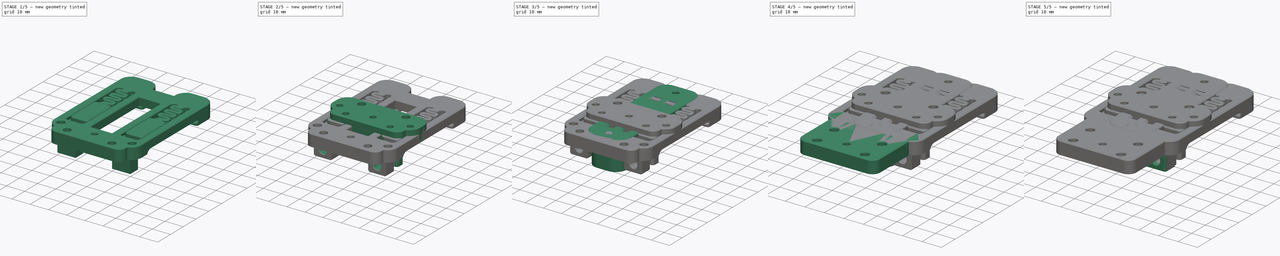
[diagram: build sequence overview — one tinted view per stage of 5, left to right]
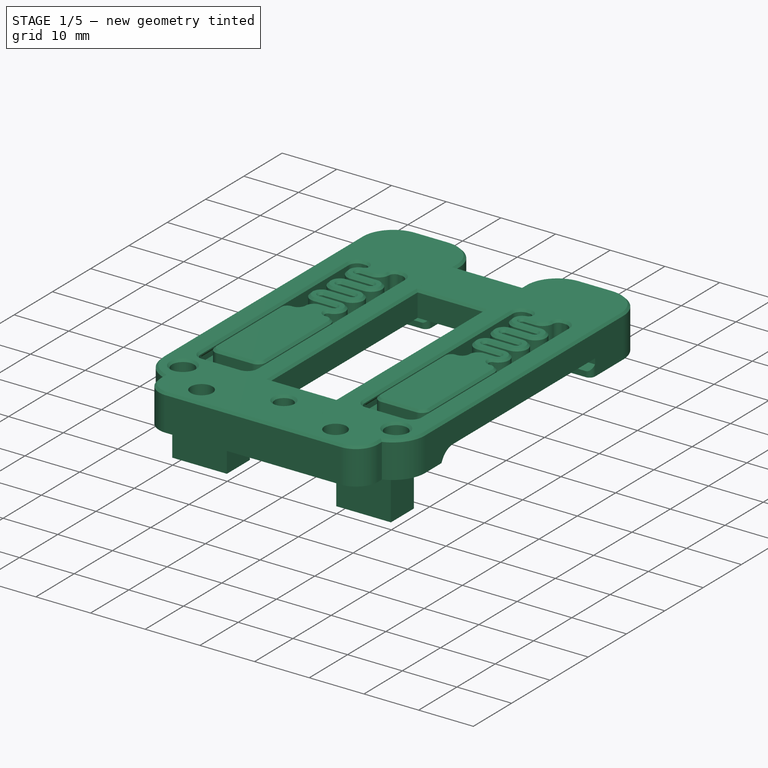
[diagram: stage 1 of 5 — iso view after this stage's code; geometry added in this stage tinted green]
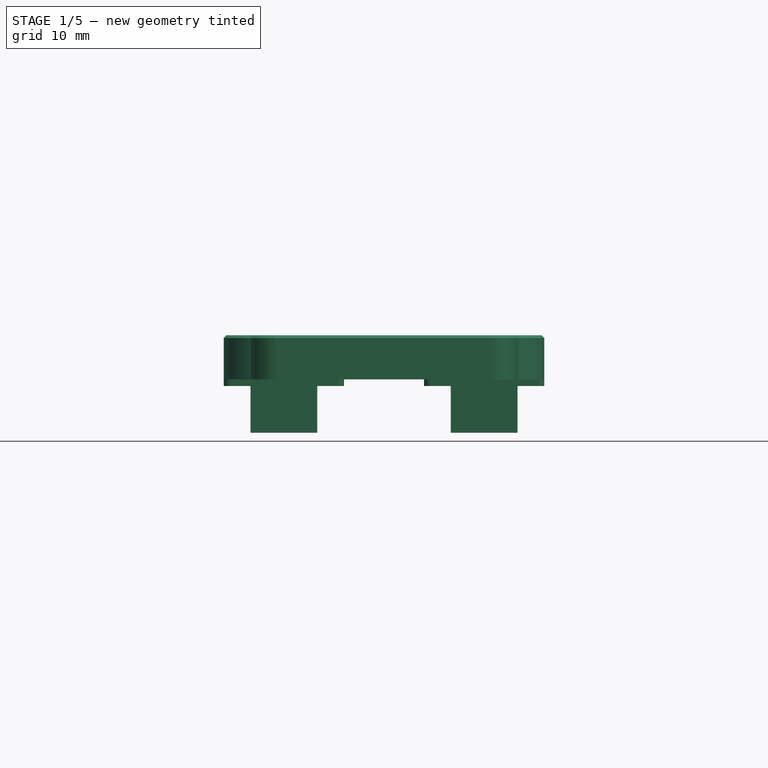
[diagram: stage 1 of 5 — front view after this stage's code; geometry added in this stage tinted green]
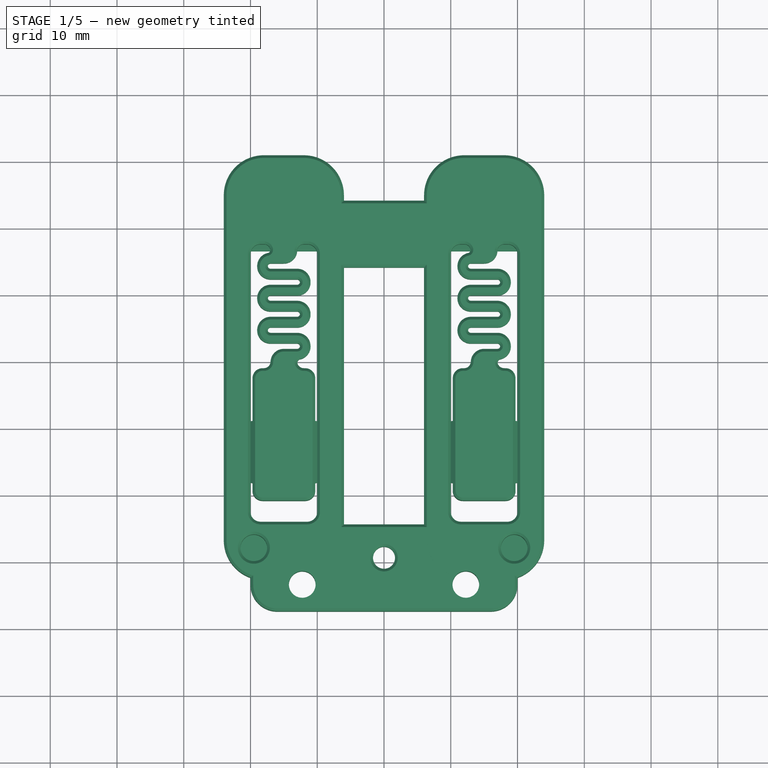
[diagram: stage 1 of 5 — top view after this stage's code; geometry added in this stage tinted green]
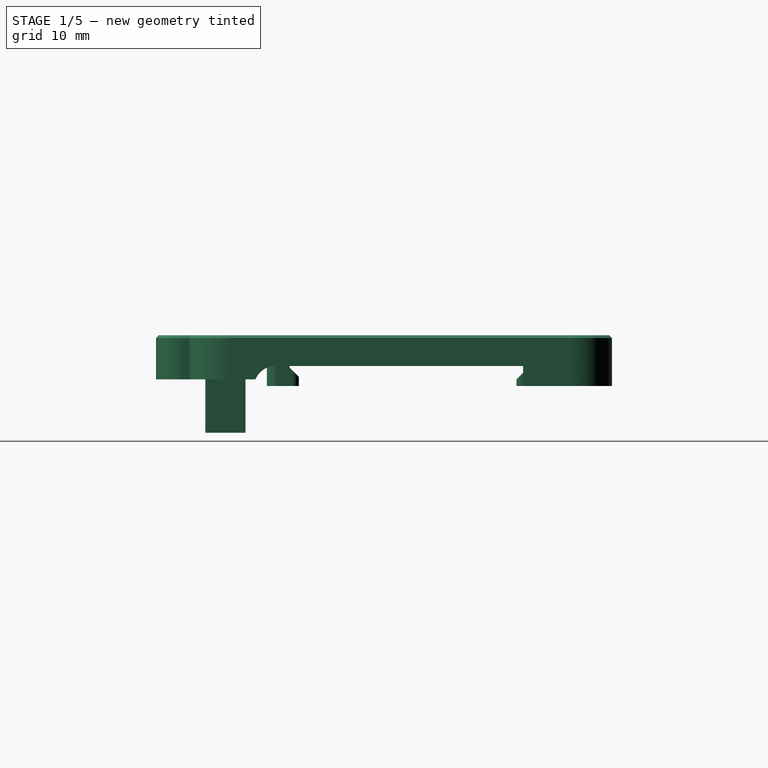
[diagram: stage 1 of 5 — right view after this stage's code; geometry added in this stage tinted green]
FCSTD DOCUMENT  (FreeCAD 0.21R33675 (Git))
Label: wireless-charger-mount
License: All rights reserved
LicenseURL: http://en.wikipedia.org/wiki/All_rights_reserved
objects: Sketcher::SketchObject×25, PartDesign::Pocket×17, PartDesign::Pad×14, PartDesign::Chamfer×10, PartDesign::Fillet×9, Part::Feature×6, PartDesign::Body×6, Part::Box×4, Part::Chamfer×4, PartDesign::FeatureBase×3, Part::Fillet×2, Part::MultiFuse×2, PartDesign::LinearPattern×1
note: 153 computed .brp shape members not serialized (recipe doc carries the construction recipe); baked Part::Feature solids carry a one-line shape summary decoded from their .brp

FEATURE [PartDesign::Body] Body006  label="spacer-wire-mounter"
  Group = -> [Sketch011,Pad006,Fillet003,Sketch012,Pad007,Fillet004,Sketch013,Pocket009,Sketch014,Pocket010,LinearPattern,Sketch015,Pocket011,Chamfer006,Chamfer007]
  Origin = -> Origin003
  Tip = -> Chamfer007
FEATURE [Part::Feature] Body007  label="base004"
  Placement = pos=(15,0,4.6) rot=(0,0,1;0rad)
  shape: bbox 18 x 63.6 x 7.6 mm, 153 faces (baked)
FEATURE [Part::Feature] Body008  label="base005"
  Placement = pos=(-15,0,4.6) rot=(0,0,1;0rad)
  shape: bbox 18 x 63.6 x 7.6 mm, 153 faces (baked)
FEATURE [Part::Box] Box003  label="Cube003"
  AttacherType = Attacher::AttachEngine3D
  Height = 4.6
  Length = 14
  Placement = pos=(-7,14,0) rot=(0,0,1;0rad)
  Width = 10
FEATURE [Part::Box] Box004  label="Cube004"
  AttacherType = Attacher::AttachEngine3D
  Height = 6.6
  Length = 40
  Placement = pos=(-20,-37.5,-2) rot=(0,0,1;0rad)
  Width = 13
FEATURE [Part::Chamfer] Chamfer008
  Base = -> Box003
  Edges = 2 edges r=0.4: [Edge10,Edge12]
FEATURE [Part::Fillet] Fillet005
  Base = -> Box004
  Edges = 2 edges r=4: [Edge1,Edge5]
FEATURE [Part::Chamfer] Chamfer009
  Base = -> Fillet005
  Edges = 6 edges r=0.4: [Edge1,Edge5,Edge6,Edge7,Edge8,Edge9]
FEATURE [Part::MultiFuse] Fusion001
  Shapes = -> [Body007,Body008,Chamfer008,Chamfer009]
FEATURE [PartDesign::FeatureBase] BaseFeature002
  BaseFeature = -> Fusion001
FEATURE [Sketcher::SketchObject] Sketch019
  FullyConstrained = true
  MapMode = 5
  Placement = pos=(4.6e-14,-5.1e-15,4.60315) rot=(0,0,1;0rad)
  Support = -> [BaseFeature002]
  sketch-geometry (5):
    g0: Circle CenterX=-19.5 CenterY=-28 CenterZ=0 NormalX=0 NormalY=0 NormalZ=1 AngleXU=0 Radius=2
    g1: Circle CenterX=19.5 CenterY=-28 CenterZ=0 NormalX=0 NormalY=0 NormalZ=1 AngleXU=0 Radius=2
    g2: Circle CenterX=-12.25 CenterY=-33.5 CenterZ=0 NormalX=0 NormalY=0 NormalZ=1 AngleXU=0 Radius=2
    g3: Circle CenterX=12.25 CenterY=-33.5 CenterZ=0 NormalX=0 NormalY=0 NormalZ=1 AngleXU=0 Radius=2
    g4: Circle CenterX=0 CenterY=-29.5 CenterZ=0 NormalX=0 NormalY=0 NormalZ=1 AngleXU=0 Radius=1.65
  constraints (15):
    c: Horizontal(g2,g3)
    c: Horizontal(g0,g1)
    c: Equal(g1,g3)
    c: Equal(g3,g2)
    c: Equal(g2,g0)
    c: Radius(g0) = 2
    c: DistanceX(g0,g-1) = 19.5
    c: DistanceX(g-1,g1) = 19.5
    c: DistanceY(g0,g-1) = 28
    c: DistanceX(g2,g-1) = 12.25
    c: DistanceX(g-1,g3) = 12.25
    c: DistanceY(g2,g-1) = 33.5
    c: PointOnObject(g4,g-2)
    c: DistanceY(g4,g-1) = 29.5
    c: Radius(g4) = 1.65
FEATURE [PartDesign::Pocket] Pocket013
  BaseFeature = -> BaseFeature002
  Direction = (-1e-14,1.1e-15,-1)
  Length = 5
  Length2 = 5
  Profile = -> Sketch019
  ReferenceAxis = -> Sketch019 [N_Axis]
  Refine = true
  Type = 1
FEATURE [Sketcher::SketchObject] Sketch020
  ExternalGeometry = -> [Pocket013]
  FullyConstrained = true
  MapMode = 5
  Placement = pos=(0,0,-2) rot=(1,0,0;3.14159rad)
  Support = -> [Pocket013]
  sketch-geometry (4):
    g0: ArcOfCircle CenterX=0 CenterY=29.5 CenterZ=0 NormalX=0 NormalY=0 NormalZ=1 AngleXU=0 Radius=3.5 StartAngle=-2.13e-14 EndAngle=3.14159
    g1: ArcOfCircle CenterX=0 CenterY=24.5 CenterZ=0 NormalX=0 NormalY=0 NormalZ=1 AngleXU=0 Radius=3.5 StartAngle=3.14159 EndAngle=6.28319
    g2: LineSegment StartX=-3.5 StartY=29.5 StartZ=0 EndX=-3.5 EndY=24.5 EndZ=0
    g3: LineSegment StartX=3.5 StartY=24.5 StartZ=0 EndX=3.5 EndY=29.5 EndZ=0
  constraints (10):
    c: Tangent(g0,g2) = -1.5708
    c: Tangent(g2,g1) = -1.5708
    c: Tangent(g1,g3) = -1.5708
    c: Tangent(g3,g0) = -1.5708
    c: Equal(g0,g1)
    c: PointOnObject(g0,g-2)
    c: PointOnObject(g1,g-2)
    c: Horizontal(g1,g-4)
    c: Radius(g0) = 3.5
    c: Horizontal(g0,g-3)
FEATURE [PartDesign::Pocket] Pocket014
  BaseFeature = -> Pocket013
  Direction = (0,0,1)
  Length = 2.5
  Length2 = 5
  Profile = -> Sketch020
  ReferenceAxis = -> Sketch020 [N_Axis]
  Type = 0
FEATURE [PartDesign::Chamfer] Chamfer011
  Angle = 45
  Base = -> Pocket014 [Edge262,Edge467,Edge17]
  BaseFeature = -> Pocket014
  ChamferType = 0
  FlipDirection = false
  Size = 0.4
  Size2 = 1
  SupportTransform = false
  UseAllEdges = false
FEATURE [PartDesign::Body] Body010  label="cap-spacer"
  Group = -> [Sketch016,Pad008,Fillet006,Sketch017,Pad009,Fillet007,Fillet008,Sketch018,Pocket012,Sketch021,Pocket015,Chamfer012]
  Origin = -> Origin005
  Placement = pos=(0,-17.5,5) rot=(0,0,1;0rad)
  Tip = -> Chamfer012
FEATURE [Part::Feature] Chamfer013
  Placement = pos=(-52,-17,0) rot=(0,0,1;0rad)
  shape: bbox 48 x 20 x 10 mm, 61 faces (baked)
FEATURE [Sketcher::SketchObject] Sketch022
  ExternalGeometry = -> [Chamfer011]
  FullyConstrained = true
  MapMode = 5
  Placement = pos=(0,0,-2) rot=(1,0,0;3.14159rad)
  Support = -> [Chamfer011]
  sketch-geometry (2):
    g0: Circle CenterX=-19.5 CenterY=28 CenterZ=0 NormalX=0 NormalY=0 NormalZ=1 AngleXU=0 Radius=2
    g1: Circle CenterX=19.5 CenterY=28 CenterZ=0 NormalX=0 NormalY=0 NormalZ=1 AngleXU=0 Radius=2
  constraints (4):
    c: Coincident(g0,g-7)
    c: Coincident(g1,g-8)
    c: Equal(g-7,g0)
    c: Equal(g0,g1)
FEATURE [PartDesign::Pad] Pad010
  BaseFeature = -> Chamfer011
  Direction = (0,0,-1)
  Length = 1
  Length2 = 10
  Profile = -> Sketch022
  ReferenceAxis = -> Sketch022 [N_Axis]
  Refine = true
  Reversed = true
  Type = 0
FEATURE [Sketcher::SketchObject] Sketch023
  ExternalGeometry = -> [Pad010]
  FullyConstrained = true
  MapMode = 5
  Placement = pos=(-2e-14,4.1e-15,-1.99685) rot=(1,0,0;3.14159rad)
  Support = -> [Pad010]
  sketch-geometry (8):
    g0: LineSegment StartX=-20.0028 StartY=24.103 StartZ=0 EndX=-10.0028 EndY=24.103 EndZ=0
    g1: LineSegment StartX=-10.0028 StartY=24.103 StartZ=0 EndX=-10.0028 EndY=30.103 EndZ=0
    g2: LineSegment StartX=-10.0028 StartY=30.103 StartZ=0 EndX=-20.0028 EndY=30.103 EndZ=0
    g3: LineSegment StartX=-20.0028 StartY=30.103 StartZ=0 EndX=-20.0028 EndY=24.103 EndZ=0
    g4: LineSegment StartX=9.99721 StartY=24.103 StartZ=0 EndX=19.9972 EndY=24.103 EndZ=0
    g5: LineSegment StartX=19.9972 StartY=24.103 StartZ=0 EndX=19.9972 EndY=30.103 EndZ=0
    g6: LineSegment StartX=19.9972 StartY=30.103 StartZ=0 EndX=9.99721 EndY=30.103 EndZ=0
    g7: LineSegment StartX=9.99721 StartY=30.103 StartZ=0 EndX=9.99721 EndY=24.103 EndZ=0
  constraints (24):
    c: Coincident(g0,g1)
    c: Coincident(g1,g2)
    c: Coincident(g2,g3)
    c: Coincident(g3,g0)
    c: Horizontal(g0)
    c: Horizontal(g2)
    c: Vertical(g1)
    c: Vertical(g3)
    c: Coincident(g4,g5)
    c: Coincident(g5,g6)
    c: Coincident(g6,g7)
    c: Coincident(g7,g4)
    c: Horizontal(g4)
    c: Horizontal(g6)
    c: Vertical(g5)
    c: Vertical(g7)
    c: Vertical(g0,g-3)
    c: Vertical(g0,g-4)
    c: Vertical(g4,g-6)
    c: Vertical(g4,g-7)
    c: Horizontal(g0,g-5)
    c: Horizontal(g-5,g4)
    c: DistanceY(g1,g1) = 6
    c: Horizontal(g1,g6)
FEATURE [PartDesign::Pad] Pad011
  BaseFeature = -> Pad010
  Direction = (-1e-14,2.1e-15,-1)
  Length = 8
  Length2 = 10
  Profile = -> Sketch023
  ReferenceAxis = -> Sketch023 [N_Axis]
  Type = 0
FEATURE [PartDesign::Chamfer] Chamfer014
  Angle = 45
  Base = -> Pad011 [Edge244,Edge80]
  BaseFeature = -> Pad011
  ChamferType = 0
  FlipDirection = false
  Size = 0.4
  Size2 = 1
  SupportTransform = false
  UseAllEdges = false
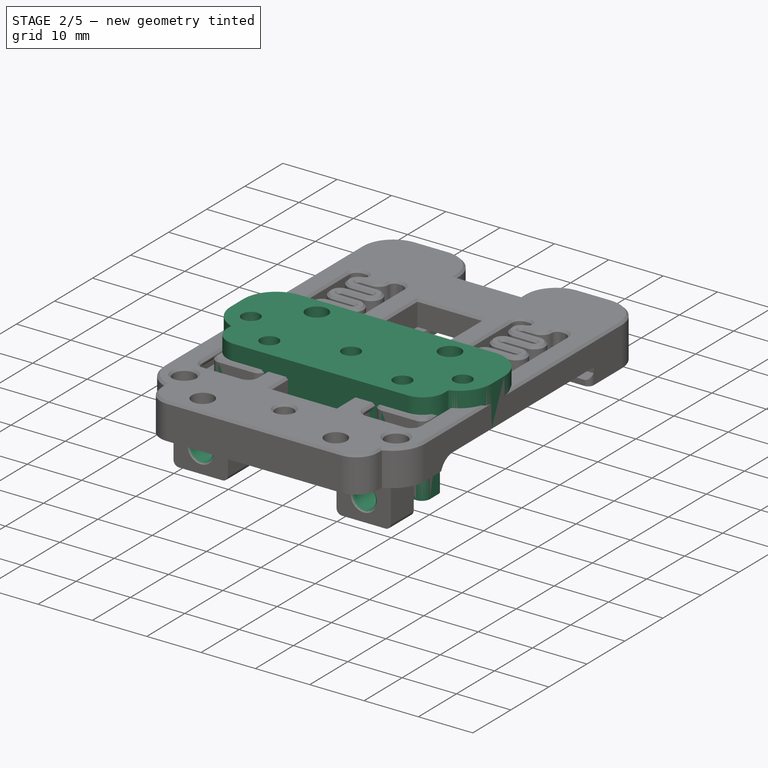
[diagram: stage 2 of 5 — iso view after this stage's code; geometry added in this stage tinted green]
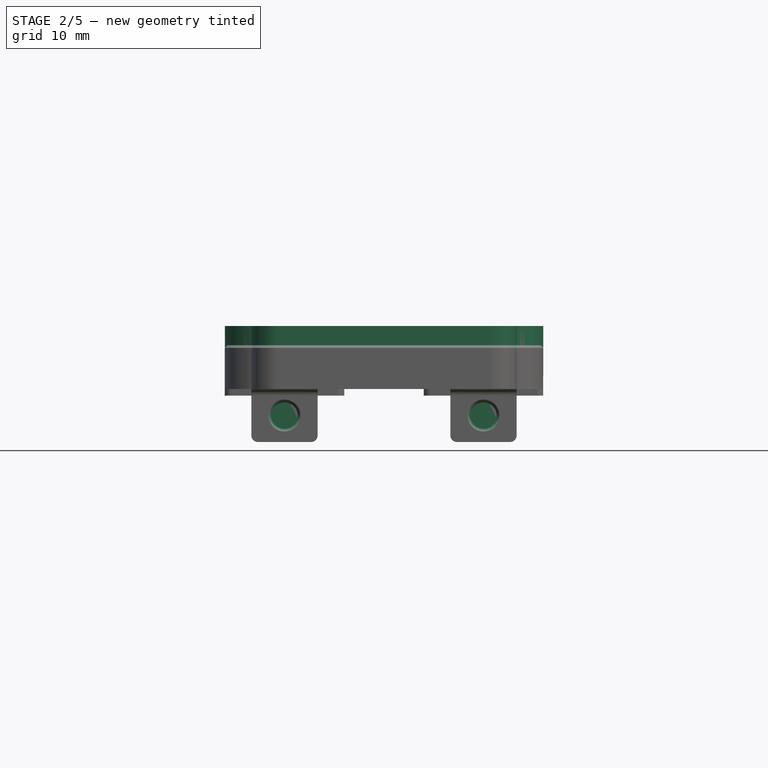
[diagram: stage 2 of 5 — front view after this stage's code; geometry added in this stage tinted green]
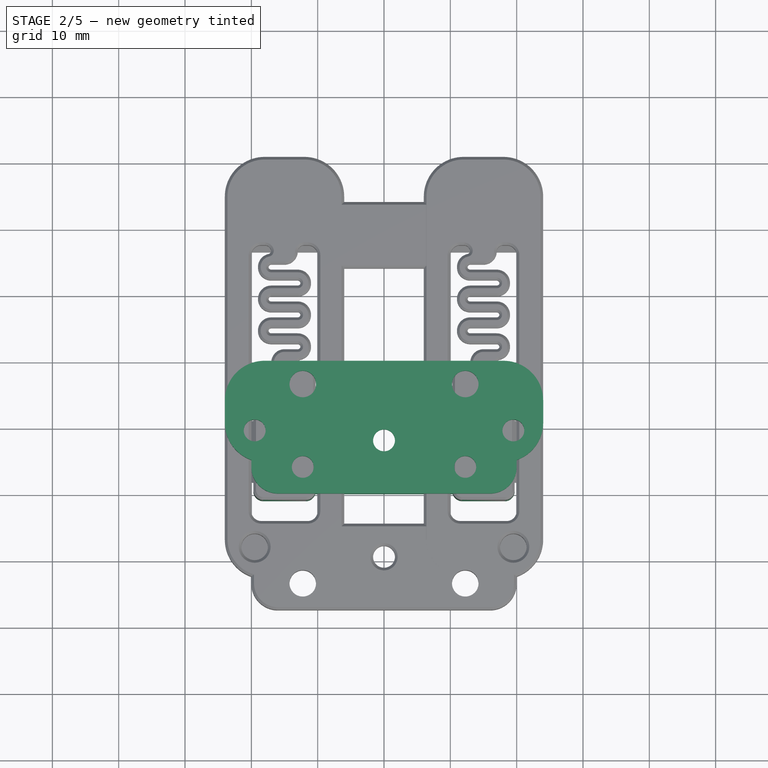
[diagram: stage 2 of 5 — top view after this stage's code; geometry added in this stage tinted green]
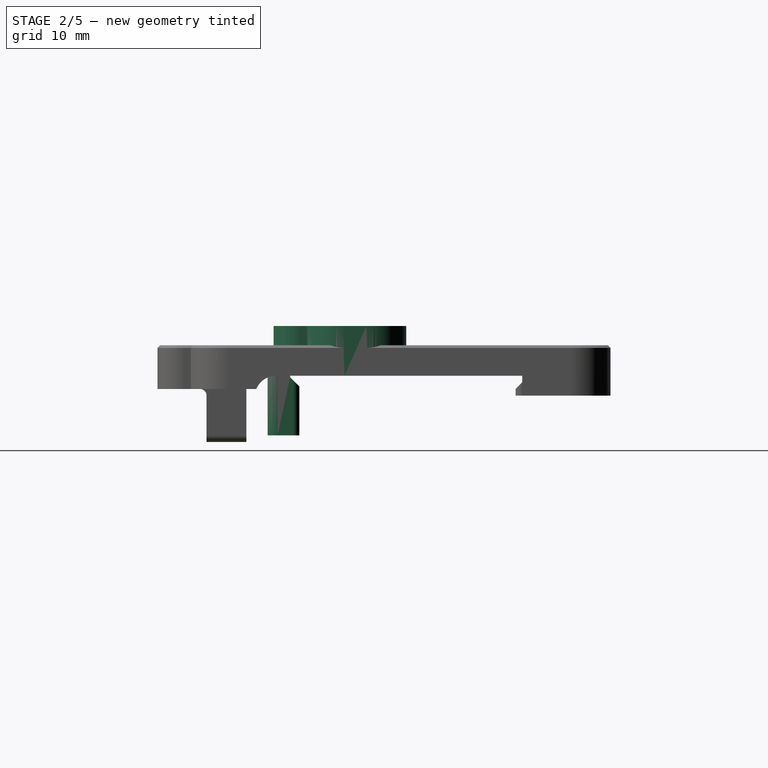
[diagram: stage 2 of 5 — right view after this stage's code; geometry added in this stage tinted green]
FEATURE [Sketcher::SketchObject] Sketch016
  FullyConstrained = true
  MapMode = 5
  Support = -> [XY_Plane005]
  sketch-geometry (4):
    g0: LineSegment StartX=-24 StartY=0 StartZ=0 EndX=24 EndY=0 EndZ=0
    g1: LineSegment StartX=24 StartY=0 StartZ=0 EndX=24 EndY=-15.3 EndZ=0
    g2: LineSegment StartX=24 StartY=-15.3 StartZ=0 EndX=-24 EndY=-15.3 EndZ=0
    g3: LineSegment StartX=-24 StartY=-15.3 StartZ=0 EndX=-24 EndY=0 EndZ=0
  constraints (12):
    c: Coincident(g0,g1)
    c: Coincident(g1,g2)
    c: Coincident(g2,g3)
    c: Coincident(g3,g0)
    c: Horizontal(g0)
    c: Horizontal(g2)
    c: Vertical(g1)
    c: Vertical(g3)
    c: PointOnObject(g0,g-1)
    c: DistanceX(g2,g2) = 48
    c: DistanceX(g0,g-1) = 24
    c: DistanceY(g3,g3) = 15.3
FEATURE [PartDesign::Pad] Pad008
  Direction = (0,0,1)
  Length = 7.5
  Length2 = 10
  Profile = -> Sketch016
  ReferenceAxis = -> Sketch016 [N_Axis]
  Type = 0
FEATURE [PartDesign::Fillet] Fillet006
  Base = -> Pad008 [Edge8,Edge5]
  BaseFeature = -> Pad008
  Radius = 6
  SupportTransform = false
  UseAllEdges = false
FEATURE [Sketcher::SketchObject] Sketch017
  FullyConstrained = true
  MapMode = 5
  Placement = pos=(0,0,7.5) rot=(0,0,1;0rad)
  Support = -> [Fillet006]
  sketch-geometry (4):
    g0: LineSegment StartX=-20 StartY=0 StartZ=0 EndX=20 EndY=0 EndZ=0
    g1: LineSegment StartX=20 StartY=0 StartZ=0 EndX=20 EndY=-20 EndZ=0
    g2: LineSegment StartX=20 StartY=-20 StartZ=0 EndX=-20 EndY=-20 EndZ=0
    g3: LineSegment StartX=-20 StartY=-20 StartZ=0 EndX=-20 EndY=0 EndZ=0
  constraints (12):
    c: Coincident(g0,g1)
    c: Coincident(g1,g2)
    c: Coincident(g2,g3)
    c: Coincident(g3,g0)
    c: Horizontal(g0)
    c: Horizontal(g2)
    c: Vertical(g1)
    c: Vertical(g3)
    c: PointOnObject(g0,g-1)
    c: DistanceX(g0,g0) = 40
    c: DistanceX(g0,g-1) = 20
    c: DistanceY(g3,g3) = 20
FEATURE [PartDesign::Pad] Pad009
  BaseFeature = -> Fillet006
  Direction = (0,0,1)
  Length = 7.5
  Length2 = 10
  Profile = -> Sketch017
  ReferenceAxis = -> Sketch017 [N_Axis]
  Reversed = true
  Type = 0
FEATURE [PartDesign::Fillet] Fillet007
  Base = -> Pad009 [Edge34,Edge19]
  BaseFeature = -> Pad009
  Radius = 4
  Refine = true
  SupportTransform = false
  UseAllEdges = false
FEATURE [PartDesign::Fillet] Fillet008
  Base = -> Fillet007 [Edge27,Edge21]
  BaseFeature = -> Fillet007
  Radius = 6
  SupportTransform = false
  UseAllEdges = false
FEATURE [Sketcher::SketchObject] Sketch018
  FullyConstrained = true
  MapMode = 5
  Placement = pos=(0,0,7.5) rot=(0,0,1;0rad)
  Support = -> [Fillet008]
  sketch-geometry (8):
    g0: Circle CenterX=-12.25 CenterY=-16 CenterZ=0 NormalX=0 NormalY=0 NormalZ=1 AngleXU=0 Radius=1.65
    g1: Circle CenterX=12.25 CenterY=-16 CenterZ=0 NormalX=0 NormalY=0 NormalZ=1 AngleXU=0 Radius=1.65
    g2: Circle CenterX=12.25 CenterY=-3.5 CenterZ=0 NormalX=0 NormalY=0 NormalZ=1 AngleXU=0 Radius=2
    g3: Circle CenterX=-12.25 CenterY=-3.5 CenterZ=0 NormalX=0 NormalY=0 NormalZ=1 AngleXU=0 Radius=2
    g4: Circle CenterX=-19.5 CenterY=-10.5 CenterZ=0 NormalX=0 NormalY=0 NormalZ=1 AngleXU=0 Radius=1.65
    g5: Circle CenterX=19.5 CenterY=-10.5 CenterZ=0 NormalX=0 NormalY=0 NormalZ=1 AngleXU=0 Radius=1.65
    g6: Circle CenterX=-19.5 CenterY=-10.5 CenterZ=0 NormalX=0 NormalY=0 NormalZ=1 AngleXU=0 Radius=3.5
    g7: Circle CenterX=0 CenterY=-12 CenterZ=0 NormalX=0 NormalY=0 NormalZ=1 AngleXU=0 Radius=1.65
  constraints (23):
    c: Horizontal(g4,g5)
    c: Horizontal(g3,g2)
    c: Horizontal(g0,g1)
    c: Vertical(g0,g3)
    c: Vertical(g2,g1)
    c: DistanceX(g3,g-1) = 12.25
    c: DistanceX(g-1,g2) = 12.25
    c: DistanceY(g3,g-1) = 3.5
    c: DistanceY(g0,g3) = 12.5
    c: Coincident(g6,g4)
    c: Radius(g6) = 3.5
    c: Radius(g4) = 1.65
    c: Equal(g4,g0)
    c: Equal(g0,g1)
    c: Equal(g1,g5)
    c: Equal(g3,g2)
    c: Radius(g2) = 2
    c: DistanceX(g4,g-1) = 19.5
    c: DistanceY(g4,g-1) = 10.5
    c: DistanceX(g-1,g5) = 19.5
    c: PointOnObject(g7,g-2)
    c: DistanceY(g7,g-1) = 12
    c: Radius(g7) = 1.65
FEATURE [PartDesign::Pocket] Pocket012
  BaseFeature = -> Fillet008
  Direction = (0,0,-1)
  Length = 5
  Length2 = 5
  Profile = -> Sketch018
  ReferenceAxis = -> Sketch018 [N_Axis]
  Type = 1
FEATURE [Sketcher::SketchObject] Sketch021
  ExternalGeometry = -> [Pocket012]
  FullyConstrained = true
  MapMode = 5
  Placement = pos=(0,0,0) rot=(1,0,0;3.14159rad)
  Support = -> [Pocket012]
  sketch-geometry (1):
    g0: Circle CenterX=0 CenterY=12 CenterZ=0 NormalX=0 NormalY=0 NormalZ=1 AngleXU=0 Radius=2
  constraints (2):
    c: Radius(g0) = 2
    c: Coincident(g0,g-3)
FEATURE [PartDesign::Pocket] Pocket015
  BaseFeature = -> Pocket012
  Direction = (0,0,1)
  Length = 5
  Length2 = 5
  Profile = -> Sketch021
  ReferenceAxis = -> Sketch021 [N_Axis]
  Type = 0
FEATURE [PartDesign::Fillet] Fillet009
  Base = -> Chamfer014 [Edge106,Edge98]
  BaseFeature = -> Chamfer014
  Radius = 1
  SupportTransform = false
  UseAllEdges = false
FEATURE [Sketcher::SketchObject] Sketch024
  ExternalGeometry = -> [Fillet009]
  FullyConstrained = true
  MapMode = 5
  Placement = pos=(0,-30.103,-6.23e-14) rot=(1,0,0;1.5708rad)
  Support = -> [Fillet009]
  sketch-geometry (2):
    g0: Circle CenterX=-15.0028 CenterY=-5.99685 CenterZ=0 NormalX=0 NormalY=0 NormalZ=1 AngleXU=0 Radius=2
    g1: Circle CenterX=14.9972 CenterY=-5.99685 CenterZ=0 NormalX=0 NormalY=0 NormalZ=1 AngleXU=0 Radius=2
  constraints (7):
    c: Horizontal(g0,g1)
    c: Equal(g1,g0)
    c: DistanceY(g-3,g0) = 4
    c: DistanceX(g-3,g-3) = 10
    c: DistanceX(g-3,g0) = 5
    c: DistanceX(g1,g-4) = 5
    c: Radius(g1) = 2
FEATURE [PartDesign::Pocket] Pocket016
  BaseFeature = -> Fillet009
  Direction = (0,1,2.1e-15)
  Length = 7
  Length2 = 5
  Profile = -> Sketch024
  ReferenceAxis = -> Sketch024 [N_Axis]
  Type = 0
FEATURE [PartDesign::Fillet] Fillet010
  Base = -> Pocket016 [Edge100,Edge90,Edge48,Edge194]
  BaseFeature = -> Pocket016
  Radius = 1
  SupportTransform = false
  UseAllEdges = false
FEATURE [PartDesign::Chamfer] Chamfer015
  Angle = 45
  Base = -> Fillet010 [Edge203,Edge19]
  BaseFeature = -> Fillet010
  ChamferType = 0
  FlipDirection = false
  Size = 0.4
  Size2 = 1
  SupportTransform = false
  UseAllEdges = false
FEATURE [PartDesign::Pad] Pad012
  BaseFeature = -> Chamfer015
  Direction = (-1e-14,1.2e-15,-1)
  Length = 6
  Length2 = 10
  Profile = -> Chamfer015 [Face361]
  Type = 0
FEATURE [PartDesign::Pad] Pad013
  BaseFeature = -> Pad012
  Direction = (-1e-14,1.2e-15,-1)
  Length = 6
  Length2 = 10
  Profile = -> Pad012 [Face293]
  Refine = true
  Type = 0
FEATURE [PartDesign::Body] Body009  label="din-base-lower"
  BaseFeature = -> Fusion001
  Group = -> [BaseFeature002,Sketch019,Pocket013,Sketch020,Pocket014,Chamfer011,Sketch022,Pad010,Sketch023,Pad011,Chamfer014,Fillet009,Sketch024,Pocket016,Fillet010,Chamfer015,Pad012,Pad013]
  Origin = -> Origin004
  Tip = -> Pad013
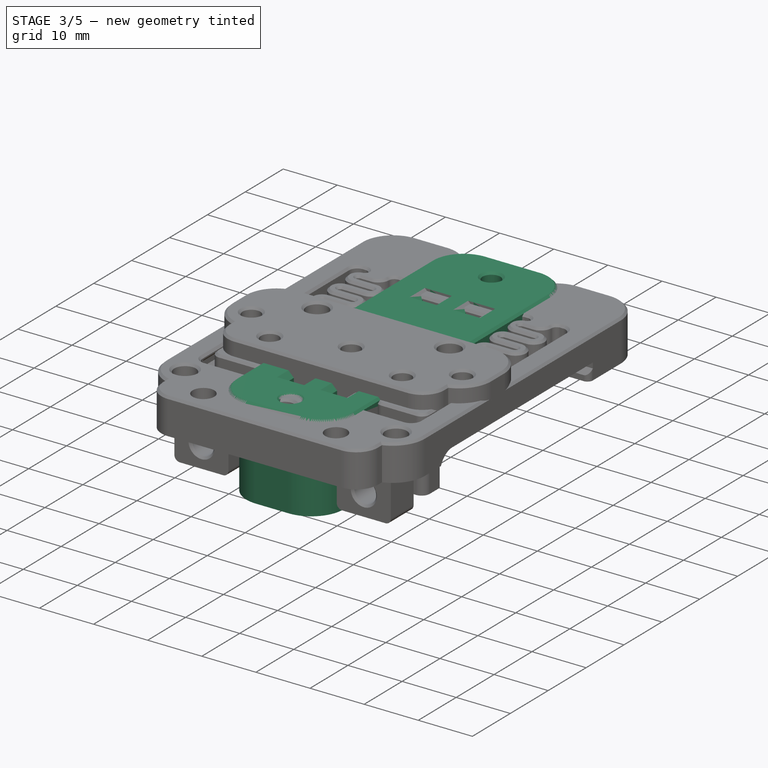
[diagram: stage 3 of 5 — iso view after this stage's code; geometry added in this stage tinted green]
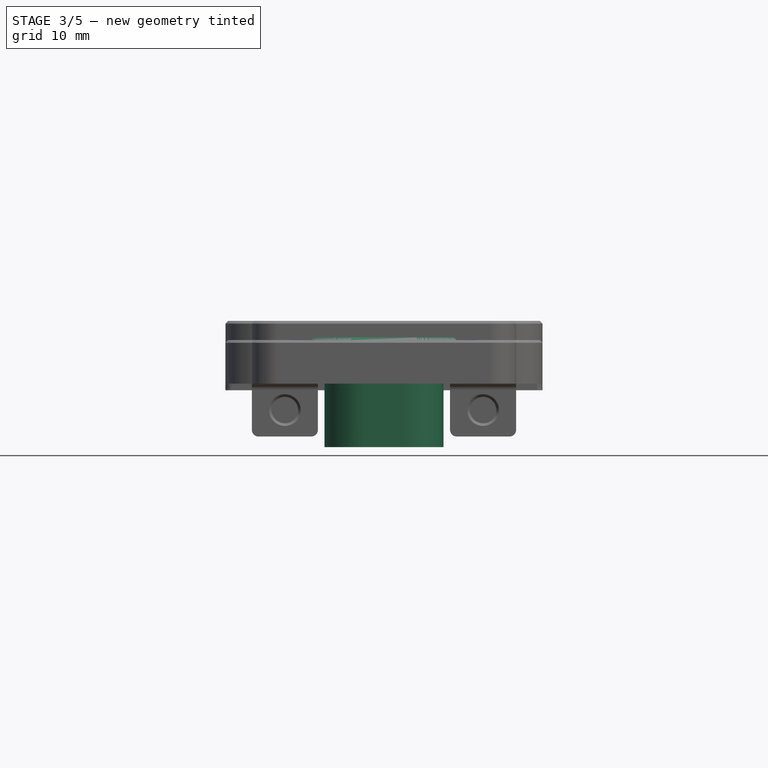
[diagram: stage 3 of 5 — front view after this stage's code; geometry added in this stage tinted green]
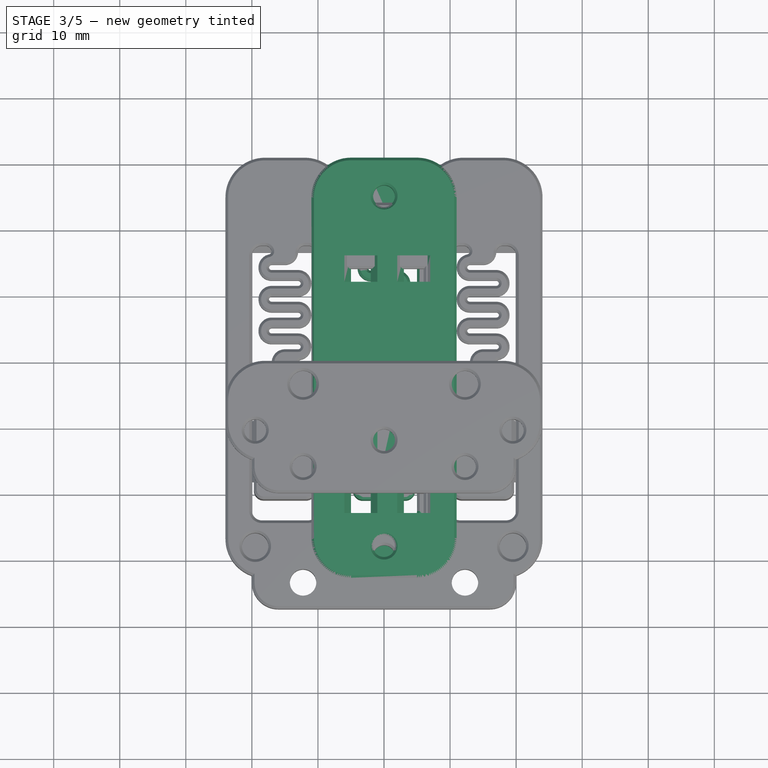
[diagram: stage 3 of 5 — top view after this stage's code; geometry added in this stage tinted green]
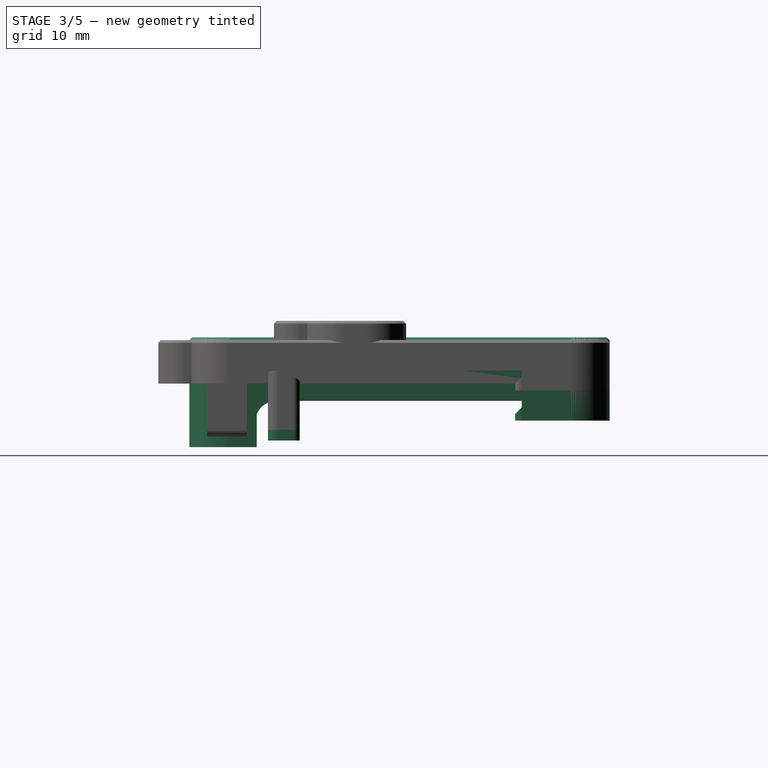
[diagram: stage 3 of 5 — right view after this stage's code; geometry added in this stage tinted green]
FEATURE [PartDesign::Body] Body  label="din-mounter"
  BaseFeature = -> Fusion
  Group = -> [BaseFeature,Sketch004,Pocket003,Sketch005,Pocket004,Chamfer003,Sketch006,Pad001,Fillet002,Sketch007,Pocket005,Sketch008,Pocket006,Pad002,Pad003,Chamfer004]
  Origin = -> Origin
  Tip = -> Chamfer004
FEATURE [Part::Feature] Body004  label="base003"
  Placement = pos=(0,0,4.6) rot=(0,0,1;0rad)
  shape: bbox 18 x 63.6 x 7.6 mm, 153 faces (baked)
FEATURE [PartDesign::FeatureBase] BaseFeature001
  BaseFeature = -> Body004
FEATURE [PartDesign::Pad] Pad004
  BaseFeature = -> BaseFeature001
  Direction = (-1e-14,2.1e-15,-1)
  Length = 5
  Length2 = 10
  Profile = -> BaseFeature001 [Face151]
  Type = 0
FEATURE [PartDesign::Pad] Pad005
  BaseFeature = -> Pad004
  Direction = (-1e-14,1.2e-15,-1)
  Length = 3
  Length2 = 10
  Profile = -> Pad004 [Face141]
  Type = 0
FEATURE [PartDesign::Body] Body005  label="spacer-base"
  BaseFeature = -> Body004
  Group = -> [BaseFeature001,Pad004,Pad005,Sketch009,Pocket007,Sketch010,Pocket008,Chamfer005]
  Origin = -> Origin002
  Tip = -> Chamfer005
FEATURE [Sketcher::SketchObject] Sketch011
  FullyConstrained = true
  MapMode = 5
  Support = -> [XY_Plane003]
  sketch-geometry (4):
    g0: LineSegment StartX=-11 StartY=30.8 StartZ=0 EndX=11 EndY=30.8 EndZ=0
    g1: LineSegment StartX=11 StartY=30.8 StartZ=0 EndX=11 EndY=-32.8 EndZ=0
    g2: LineSegment StartX=11 StartY=-32.8 StartZ=0 EndX=-11 EndY=-32.8 EndZ=0
    g3: LineSegment StartX=-11 StartY=-32.8 StartZ=0 EndX=-11 EndY=30.8 EndZ=0
  constraints (12):
    c: Coincident(g0,g1)
    c: Coincident(g1,g2)
    c: Coincident(g2,g3)
    c: Coincident(g3,g0)
    c: Horizontal(g0)
    c: Horizontal(g2)
    c: Vertical(g1)
    c: Vertical(g3)
    c: DistanceX(g0,g0) = 22
    c: DistanceX(g0,g-1) = 11
    c: DistanceY(g1,g1) = 63.6
    c: DistanceY(g-1,g0) = 30.8
FEATURE [PartDesign::Pad] Pad006
  Direction = (0,0,1)
  Length = 5
  Length2 = 10
  Profile = -> Sketch011
  ReferenceAxis = -> Sketch011 [N_Axis]
  Type = 0
FEATURE [PartDesign::Fillet] Fillet003
  Base = -> Pad006 [Edge8,Edge5,Edge1,Edge2]
  BaseFeature = -> Pad006
  Radius = 6
  SupportTransform = false
  UseAllEdges = false
FEATURE [Sketcher::SketchObject] Sketch012
  ExternalGeometry = -> [Fillet003]
  FullyConstrained = true
  MapMode = 5
  Placement = pos=(0,0,0) rot=(1,0,0;3.14159rad)
  Support = -> [Fillet003]
  sketch-geometry (8):
    g0: LineSegment StartX=-11 StartY=26.8 StartZ=0 EndX=-9.15 EndY=26.8 EndZ=0
    g1: LineSegment StartX=-9.15 StartY=26.8 StartZ=0 EndX=-9.15 EndY=-24.8 EndZ=0
    g2: LineSegment StartX=-9.15 StartY=-24.8 StartZ=0 EndX=-11 EndY=-24.8 EndZ=0
    g3: LineSegment StartX=-11 StartY=-24.8 StartZ=0 EndX=-11 EndY=26.8 EndZ=0
    g4: LineSegment StartX=11 StartY=26.8 StartZ=0 EndX=9.15 EndY=26.8 EndZ=0
    g5: LineSegment StartX=9.15 StartY=26.8 StartZ=0 EndX=9.15 EndY=-24.8 EndZ=0
    g6: LineSegment StartX=9.15 StartY=-24.8 StartZ=0 EndX=11 EndY=-24.8 EndZ=0
    g7: LineSegment StartX=11 StartY=-24.8 StartZ=0 EndX=11 EndY=26.8 EndZ=0
  constraints (22):
    c: Coincident(g0,g1)
    c: Coincident(g1,g2)
    c: Coincident(g2,g3)
    c: Coincident(g3,g0)
    c: Horizontal(g0)
    c: Horizontal(g2)
    c: Vertical(g1)
    c: Vertical(g3)
    c: Coincident(g0,g-3)
    c: Coincident(g4,g5)
    c: Coincident(g5,g6)
    c: Coincident(g6,g7)
    c: Coincident(g7,g4)
    c: Horizontal(g4)
    c: Horizontal(g6)
    c: Vertical(g5)
    c: Vertical(g7)
    c: Coincident(g4,g-4)
    c: Horizontal(g-3,g1)
    c: Horizontal(g1,g5)
    c: DistanceX(g6,g6) = 1.85
    c: Equal(g2,g6)
FEATURE [PartDesign::Pad] Pad007
  BaseFeature = -> Fillet003
  Direction = (0,0,-1)
  Length = 2
  Length2 = 10
  Profile = -> Sketch012
  ReferenceAxis = -> Sketch012 [N_Axis]
  Type = 0
FEATURE [PartDesign::Fillet] Fillet004
  Base = -> Pad007 [Edge38,Edge42,Edge27,Edge31]
  BaseFeature = -> Pad007
  Radius = 1
  SupportTransform = false
  UseAllEdges = false
FEATURE [Sketcher::SketchObject] Sketch013
  FullyConstrained = true
  MapMode = 5
  Placement = pos=(0,0,5) rot=(0,0,1;0rad)
  Support = -> [Fillet004]
  sketch-geometry (2):
    g0: Circle CenterX=0 CenterY=25 CenterZ=0 NormalX=0 NormalY=0 NormalZ=1 AngleXU=0 Radius=1.65
    g1: Circle CenterX=0 CenterY=-28 CenterZ=0 NormalX=0 NormalY=0 NormalZ=1 AngleXU=0 Radius=1.65
  constraints (6):
    c: PointOnObject(g0,g-2)
    c: PointOnObject(g1,g-2)
    c: DistanceY(g-1,g0) = 25
    c: DistanceY(g1,g-1) = 28
    c: Radius(g0) = 1.65
    c: Equal(g0,g1)
FEATURE [PartDesign::Pocket] Pocket009
  BaseFeature = -> Fillet004
  Direction = (0,0,-1)
  Length = 5
  Length2 = 5
  Profile = -> Sketch013
  ReferenceAxis = -> Sketch013 [N_Axis]
  Type = 1
FEATURE [Sketcher::SketchObject] Sketch014
  ExternalGeometry = -> [Pocket009]
  FullyConstrained = true
  MapMode = 5
  Placement = pos=(0,0,5) rot=(0,0,1;0rad)
  Support = -> [Pocket009]
  sketch-geometry (8):
    g0: LineSegment StartX=-5 StartY=16 StartZ=0 EndX=-2 EndY=16 EndZ=0
    g1: LineSegment StartX=-2 StartY=16 StartZ=0 EndX=-2 EndY=12 EndZ=0
    g2: LineSegment StartX=-2 StartY=12 StartZ=0 EndX=-5 EndY=12 EndZ=0
    g3: LineSegment StartX=-5 StartY=12 StartZ=0 EndX=-5 EndY=16 EndZ=0
    g4: LineSegment StartX=3 StartY=16 StartZ=0 EndX=6 EndY=16 EndZ=0
    g5: LineSegment StartX=6 StartY=16 StartZ=0 EndX=6 EndY=12 EndZ=0
    g6: LineSegment StartX=6 StartY=12 StartZ=0 EndX=3 EndY=12 EndZ=0
    g7: LineSegment StartX=3 StartY=12 StartZ=0 EndX=3 EndY=16 EndZ=0
  constraints (24):
    c: Coincident(g0,g1)
    c: Coincident(g1,g2)
    c: Coincident(g2,g3)
    c: Coincident(g3,g0)
    c: Horizontal(g0)
    c: Horizontal(g2)
    c: Vertical(g1)
    c: Vertical(g3)
    c: Coincident(g4,g5)
    c: Coincident(g5,g6)
    c: Coincident(g6,g7)
    c: Coincident(g7,g4)
    c: Horizontal(g4)
    c: Horizontal(g6)
    c: Vertical(g5)
    c: Vertical(g7)
    c: Equal(g1,g7)
    c: Equal(g6,g2)
    c: Horizontal(g0,g4)
    c: DistanceX(g4,g4) = 3
    c: DistanceX(g-1,g6) = 3
    c: DistanceX(g1,g-1) = 2
    c: DistanceY(g-1,g6) = 12
    c: DistanceY(g5,g5) = 4
FEATURE [PartDesign::Pocket] Pocket010
  BaseFeature = -> Pocket009
  Direction = (0,0,-1)
  Length = 5
  Length2 = 5
  Profile = -> Sketch014
  ReferenceAxis = -> Sketch014 [N_Axis]
  Type = 1
FEATURE [PartDesign::LinearPattern] LinearPattern
  BaseFeature = -> Pocket010
  Direction = -> Y_Axis003
  Length = 35
  Occurrences = 3
  Originals = -> [Pocket010]
  Reversed = true
FEATURE [Sketcher::SketchObject] Sketch015
  ExternalGeometry = -> [LinearPattern]
  FullyConstrained = true
  MapMode = 5
  Placement = pos=(0,0,0) rot=(1,0,0;3.14159rad)
  Support = -> [LinearPattern]
  sketch-geometry (4):
    g0: LineSegment StartX=-5 StartY=23 StartZ=0 EndX=6 EndY=23 EndZ=0
    g1: LineSegment StartX=6 StartY=23 StartZ=0 EndX=6 EndY=-16 EndZ=0
    g2: LineSegment StartX=6 StartY=-16 StartZ=0 EndX=-5 EndY=-16 EndZ=0
    g3: LineSegment StartX=-5 StartY=-16 StartZ=0 EndX=-5 EndY=23 EndZ=0
  constraints (10):
    c: Coincident(g0,g1)
    c: Coincident(g1,g2)
    c: Coincident(g2,g3)
    c: Coincident(g3,g0)
    c: Horizontal(g0)
    c: Horizontal(g2)
    c: Vertical(g1)
    c: Vertical(g3)
    c: Coincident(g0,g-3)
    c: Coincident(g1,g-4)
FEATURE [PartDesign::Pocket] Pocket011
  BaseFeature = -> LinearPattern
  Direction = (0,0,1)
  Length = 2
  Length2 = 5
  Profile = -> Sketch015
  ReferenceAxis = -> Sketch015 [N_Axis]
  Refine = true
  Type = 0
FEATURE [PartDesign::Chamfer] Chamfer006
  Angle = 45
  Base = -> Pocket011 [Edge81,Edge78,Edge82,Edge85,Edge76,Edge74,Edge66,Edge68,Edge72,Edge70,Edge62,Edge64,Edge101,Edge103,Edge107,Edge97,Edge92,Edge111]
  BaseFeature = -> Pocket011
  ChamferType = 0
  FlipDirection = false
  Size = 1
  Size2 = 1
  SupportTransform = false
  UseAllEdges = false
FEATURE [PartDesign::Chamfer] Chamfer007
  Angle = 45
  Base = -> Chamfer006 [Edge9,Edge18,Edge17]
  BaseFeature = -> Chamfer006
  ChamferType = 0
  FlipDirection = false
  Size = 0.4
  Size2 = 1
  SupportTransform = false
  UseAllEdges = false
FEATURE [PartDesign::Chamfer] Chamfer012
  Angle = 45
  Base = -> Pocket015 [Face2,Face5]
  BaseFeature = -> Pocket015
  ChamferType = 0
  FlipDirection = false
  Size = 0.4
  Size2 = 1
  SupportTransform = false
  UseAllEdges = false
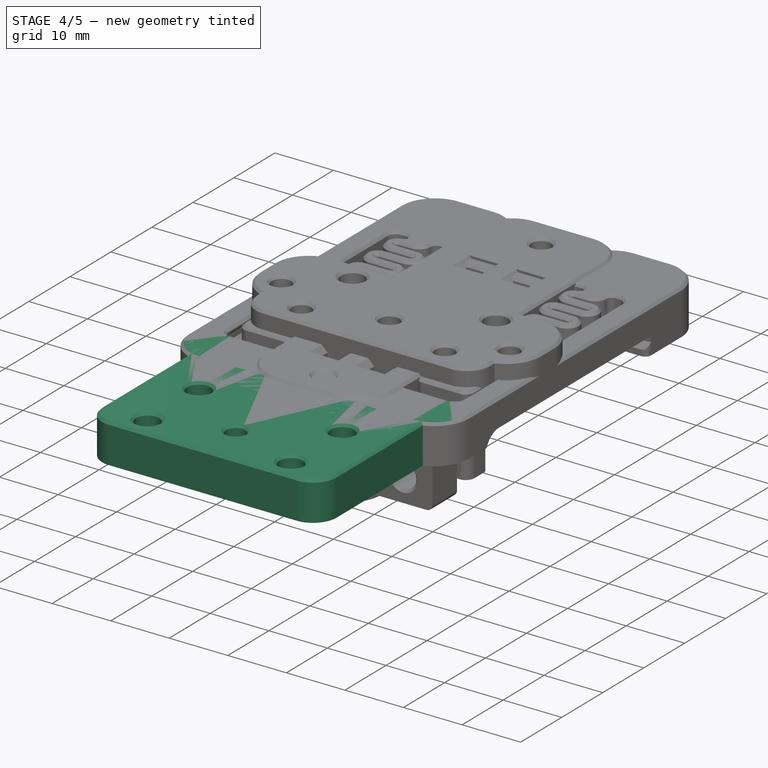
[diagram: stage 4 of 5 — iso view after this stage's code; geometry added in this stage tinted green]
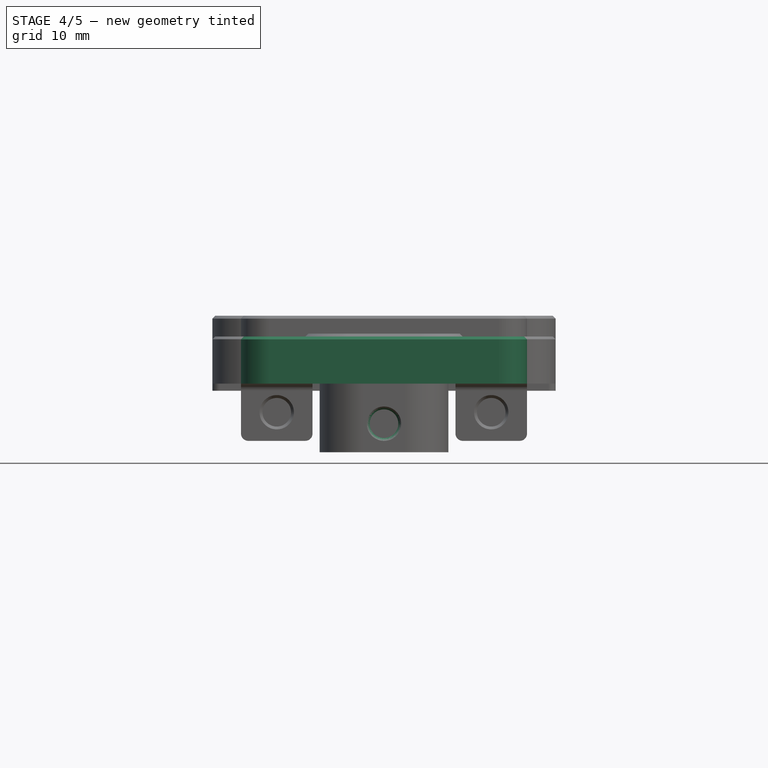
[diagram: stage 4 of 5 — front view after this stage's code; geometry added in this stage tinted green]
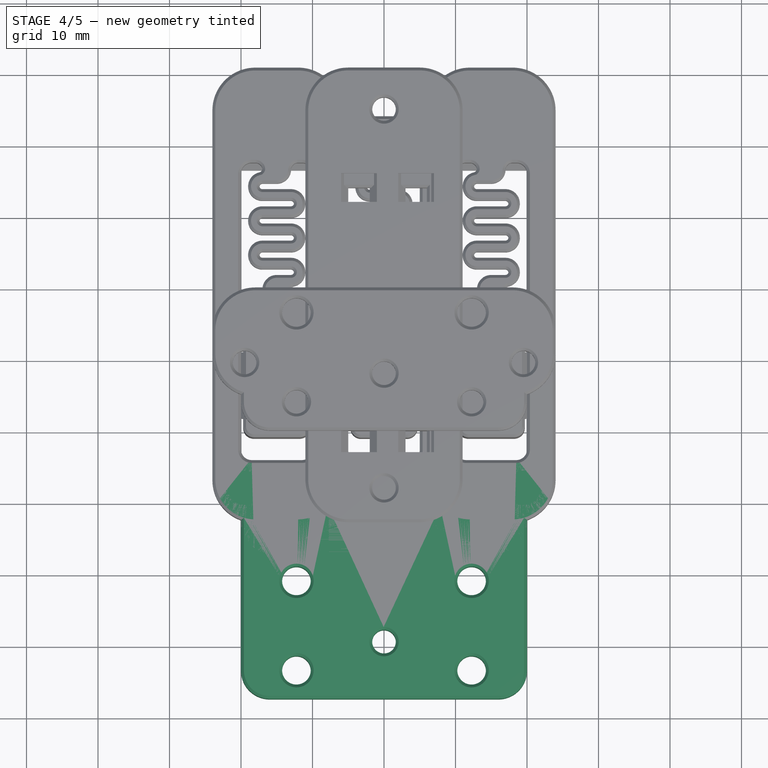
[diagram: stage 4 of 5 — top view after this stage's code; geometry added in this stage tinted green]
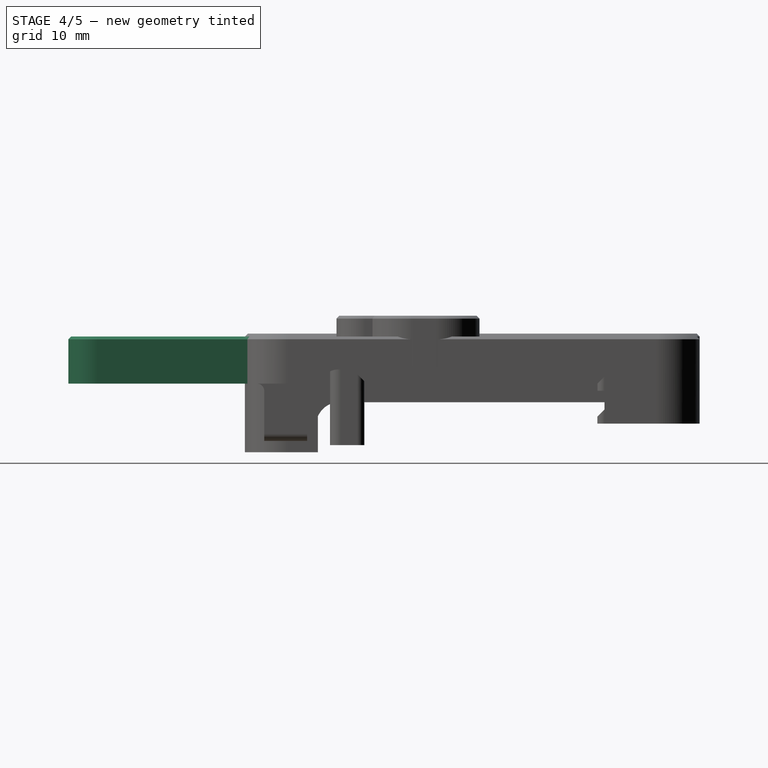
[diagram: stage 4 of 5 — right view after this stage's code; geometry added in this stage tinted green]
FEATURE [Part::Feature] Body001  label="base001"
  Placement = pos=(15,0,4.6) rot=(0,0,1;0rad)
  shape: bbox 18 x 63.6 x 7.6 mm, 153 faces (baked)
FEATURE [Part::Feature] Body002  label="base002"
  Placement = pos=(-15,0,4.6) rot=(0,0,1;0rad)
  shape: bbox 18 x 63.6 x 7.6 mm, 153 faces (baked)
FEATURE [Part::Box] Box001  label="Cube001"
  AttacherType = Attacher::AttachEngine3D
  Height = 4.6
  Length = 14
  Placement = pos=(-7,14,0) rot=(0,0,1;0rad)
  Width = 10
FEATURE [Part::Chamfer] Chamfer001
  Base = -> Box001
  Edges = 2 edges r=0.4: [Edge10,Edge12]
FEATURE [Part::Box] Box002  label="Cube002"
  AttacherType = Attacher::AttachEngine3D
  Height = 6.6
  Length = 40
  Placement = pos=(-18,-57.5,-2) rot=(0,0,1;0rad)
  Width = 33
FEATURE [Part::Fillet] Fillet001
  Base = -> Box002
  Edges = 2 edges r=4: [Edge1,Edge5]
  Placement = pos=(-2,0,0) rot=(0,0,1;0rad)
FEATURE [PartDesign::Body] Body003  label="join-cap"
  Group = -> [Sketch,Pad,Sketch001,Pocket,Sketch002,Pocket001,Sketch003,Pocket002,Fillet,Chamfer]
  Origin = -> Origin001
  Placement = pos=(0,-17.5,15.5) rot=(0,0,1;0rad)
  Tip = -> Chamfer
FEATURE [Part::Chamfer] Chamfer002
  Base = -> Fillet001
  Edges = 2 edges r=0.4: [Edge7,Edge9]
FEATURE [Part::MultiFuse] Fusion
  Refine = true
  Shapes = -> [Chamfer002,Chamfer001,Body002,Body001]
FEATURE [PartDesign::FeatureBase] BaseFeature
  BaseFeature = -> Fusion
FEATURE [Sketcher::SketchObject] Sketch004
  ExternalGeometry = -> [BaseFeature]
  FullyConstrained = true
  MapMode = 5
  Placement = pos=(0,0,4.6) rot=(0,0,1;0rad)
  Support = -> [BaseFeature]
  sketch-geometry (4):
    g0: Circle CenterX=-12.25 CenterY=-41 CenterZ=0 NormalX=0 NormalY=0 NormalZ=1 AngleXU=0 Radius=2
    g1: Circle CenterX=12.25 CenterY=-41 CenterZ=0 NormalX=0 NormalY=0 NormalZ=1 AngleXU=0 Radius=2
    g2: Circle CenterX=12.25 CenterY=-53.5 CenterZ=0 NormalX=0 NormalY=0 NormalZ=1 AngleXU=0 Radius=2
    g3: Circle CenterX=-12.25 CenterY=-53.5 CenterZ=0 NormalX=0 NormalY=0 NormalZ=1 AngleXU=0 Radius=2
  constraints (12):
    c: Horizontal(g3,g2)
    c: Horizontal(g0,g1)
    c: Vertical(g0,g3)
    c: Vertical(g1,g2)
    c: Radius(g1) = 2
    c: DistanceY(g-3,g3) = 4
    c: DistanceY(g3,g0) = 12.5
    c: DistanceX(g3,g-1) = 12.25
    c: DistanceX(g-1,g1) = 12.25
    c: Equal(g1,g2)
    c: Equal(g2,g0)
    c: Equal(g3,g0)
FEATURE [PartDesign::Pocket] Pocket003
  BaseFeature = -> BaseFeature
  Direction = (0,0,-1)
  Length = 5
  Length2 = 5
  Profile = -> Sketch004
  ReferenceAxis = -> Sketch004 [N_Axis]
  Type = 1
FEATURE [Sketcher::SketchObject] Sketch005
  ExternalGeometry = -> [Pocket003]
  FullyConstrained = true
  MapMode = 5
  Placement = pos=(0,0,4.6) rot=(0,0,1;0rad)
  Support = -> [Pocket003]
  sketch-geometry (1):
    g0: Circle CenterX=0 CenterY=-49.5 CenterZ=0 NormalX=0 NormalY=0 NormalZ=1 AngleXU=0 Radius=1.65
  constraints (3):
    c: PointOnObject(g0,g-2)
    c: DistanceY(g-3,g0) = 8
    c: Radius(g0) = 1.65
FEATURE [PartDesign::Pocket] Pocket004
  BaseFeature = -> Pocket003
  Direction = (0,0,-1)
  Length = 5
  Length2 = 5
  Profile = -> Sketch005
  ReferenceAxis = -> Sketch005 [N_Axis]
  Type = 1
FEATURE [PartDesign::Chamfer] Chamfer003
  Angle = 45
  Base = -> Pocket004 [Edge239,Edge242,Edge240,Edge238,Edge241]
  BaseFeature = -> Pocket004
  ChamferType = 0
  FlipDirection = false
  Size = 0.4
  Size2 = 1
  SupportTransform = false
  UseAllEdges = false
FEATURE [Sketcher::SketchObject] Sketch009
  ExternalGeometry = -> [Pad005]
  FullyConstrained = true
  MapMode = 5
  Placement = pos=(-6.233e-13,-32.803,-6.79e-14) rot=(1,0,0;1.5708rad)
  Support = -> [Pad005]
  sketch-geometry (1):
    g0: Circle CenterX=0 CenterY=-7.59685 CenterZ=0 NormalX=0 NormalY=0 NormalZ=1 AngleXU=0 Radius=2
  constraints (3):
    c: PointOnObject(g0,g-2)
    c: Radius(g0) = 2
    c: DistanceY(g-3,g0) = 4
FEATURE [PartDesign::Pocket] Pocket007
  BaseFeature = -> Pad005
  Direction = (1.9e-14,1,2.1e-15)
  Length = 11
  Length2 = 5
  Profile = -> Sketch009
  ReferenceAxis = -> Sketch009 [N_Axis]
  Refine = true
  Type = 0
FEATURE [Sketcher::SketchObject] Sketch010
  FullyConstrained = true
  MapMode = 5
  Placement = pos=(0,0,0.0031494) rot=(0,0,1;0rad)
  Support = -> [Pocket007]
  sketch-geometry (2):
    g0: Circle CenterX=0 CenterY=25 CenterZ=0 NormalX=0 NormalY=0 NormalZ=1 AngleXU=0 Radius=2
    g1: Circle CenterX=0 CenterY=-28 CenterZ=0 NormalX=0 NormalY=0 NormalZ=1 AngleXU=0 Radius=2
  constraints (6):
    c: PointOnObject(g0,g-2)
    c: PointOnObject(g1,g-2)
    c: Equal(g1,g0)
    c: Radius(g0) = 2
    c: DistanceY(g1,g-1) = 28
    c: DistanceY(g-1,g0) = 25
FEATURE [PartDesign::Pocket] Pocket008
  BaseFeature = -> Pocket007
  Direction = (-1e-14,1.1e-15,-1)
  Length = 6
  Length2 = 5
  Profile = -> Sketch010
  ReferenceAxis = -> Sketch010 [N_Axis]
  Type = 1
FEATURE [PartDesign::Chamfer] Chamfer005
  Angle = 45
  Base = -> Pocket008 [Edge17,Edge16,Edge243]
  BaseFeature = -> Pocket008
  ChamferType = 0
  FlipDirection = false
  Size = 0.4
  Size2 = 1
  SupportTransform = false
  UseAllEdges = false
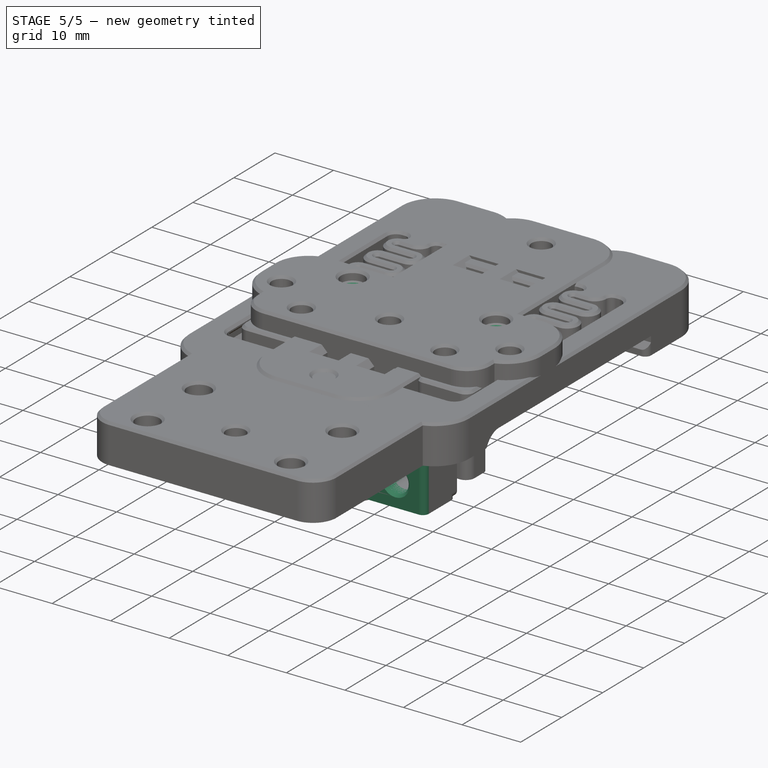
[diagram: stage 5 of 5 — iso view after this stage's code; geometry added in this stage tinted green]
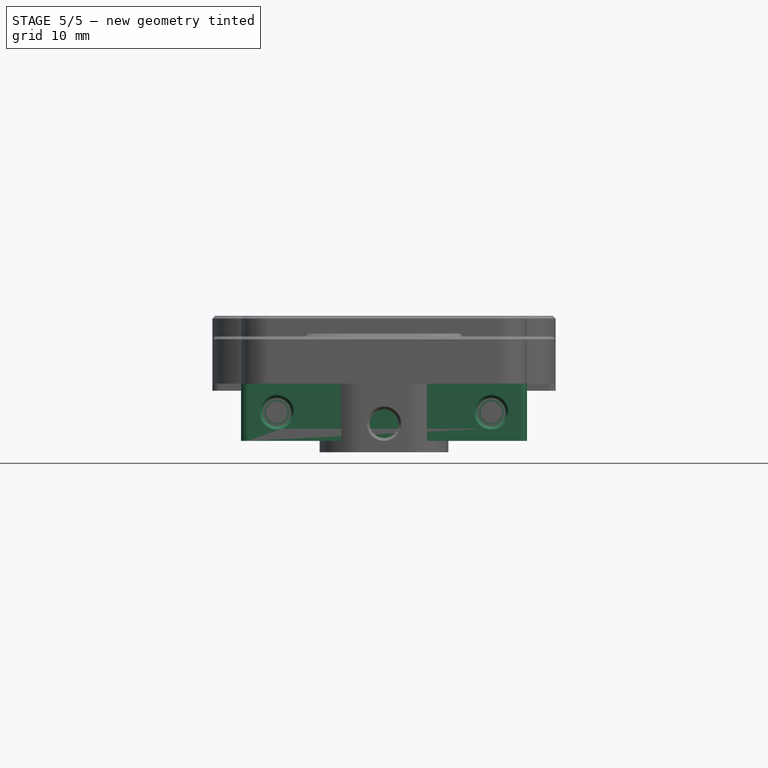
[diagram: stage 5 of 5 — front view after this stage's code; geometry added in this stage tinted green]
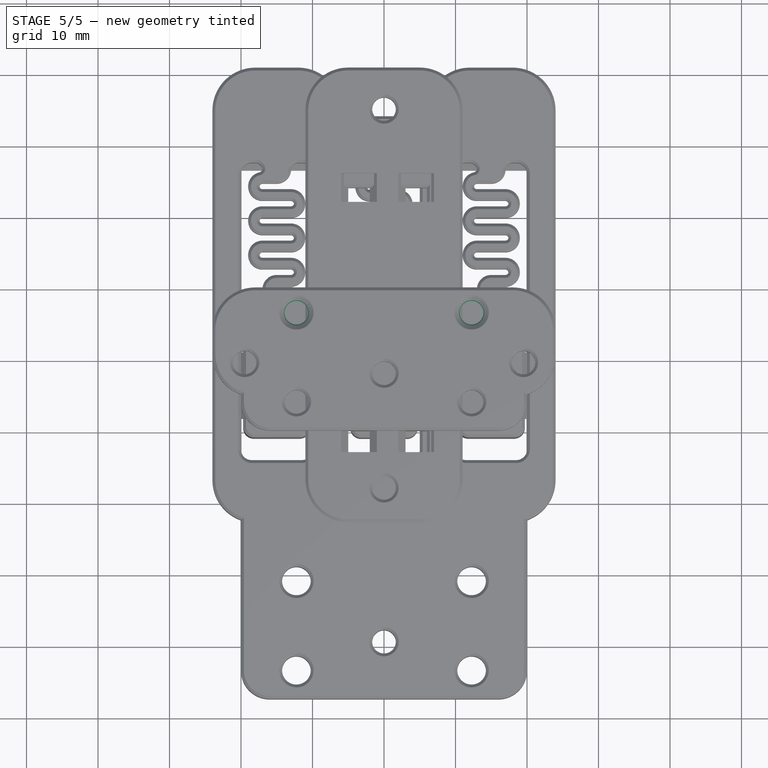
[diagram: stage 5 of 5 — top view after this stage's code; geometry added in this stage tinted green]
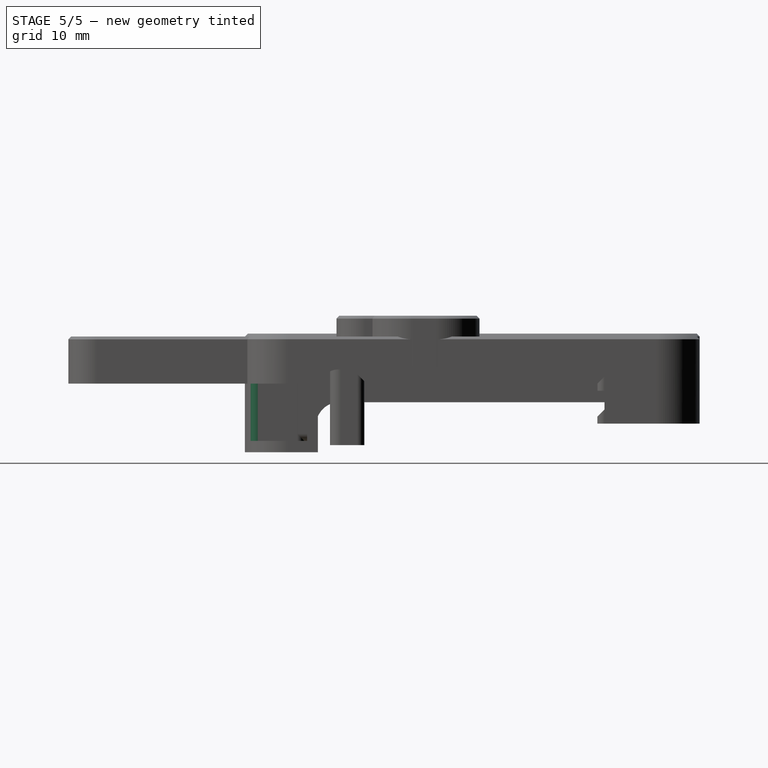
[diagram: stage 5 of 5 — right view after this stage's code; geometry added in this stage tinted green]
FEATURE [Sketcher::SketchObject] Sketch
  FullyConstrained = true
  MapMode = 5
  Support = -> [XY_Plane001]
  sketch-geometry (4):
    g0: LineSegment StartX=-16 StartY=0 StartZ=0 EndX=16 EndY=0 EndZ=0
    g1: LineSegment StartX=16 StartY=0 StartZ=0 EndX=16 EndY=-20 EndZ=0
    g2: LineSegment StartX=16 StartY=-20 StartZ=0 EndX=-16 EndY=-20 EndZ=0
    g3: LineSegment StartX=-16 StartY=-20 StartZ=0 EndX=-16 EndY=0 EndZ=0
  constraints (12):
    c: Coincident(g0,g1)
    c: Coincident(g1,g2)
    c: Coincident(g2,g3)
    c: Coincident(g3,g0)
    c: Horizontal(g0)
    c: Horizontal(g2)
    c: Vertical(g1)
    c: Vertical(g3)
    c: PointOnObject(g0,g-1)
    c: DistanceX(g0,g-1) = 16
    c: DistanceX(g0,g0) = 32
    c: DistanceY(g3,g3) = 20
FEATURE [PartDesign::Pad] Pad
  Direction = (0,0,1)
  Length = 6
  Length2 = 10
  Profile = -> Sketch
  ReferenceAxis = -> Sketch [N_Axis]
  Type = 0
FEATURE [Sketcher::SketchObject] Sketch001
  ExternalGeometry = -> [Pad]
  FullyConstrained = true
  MapMode = 5
  Placement = pos=(0,0,0) rot=(1,0,0;3.14159rad)
  Support = -> [Pad]
  sketch-geometry (4):
    g0: ArcOfCircle CenterX=0 CenterY=12 CenterZ=0 NormalX=0 NormalY=0 NormalZ=1 AngleXU=0 Radius=10.25 StartAngle=3.14159 EndAngle=6.28319
    g1: LineSegment StartX=-10.25 StartY=20 StartZ=0 EndX=-10.25 EndY=12 EndZ=0
    g2: LineSegment StartX=10.25 StartY=20 StartZ=0 EndX=10.25 EndY=12 EndZ=0
    g3: LineSegment StartX=-10.25 StartY=20 StartZ=0 EndX=10.25 EndY=20 EndZ=0
  constraints (13):
    c: PointOnObject(g0,g-2)
    c: PointOnObject(g1,g-3)
    c: Coincident(g1,g0)
    c: Vertical(g1)
    c: PointOnObject(g2,g-3)
    c: Coincident(g2,g0)
    c: Vertical(g2)
    c: Coincident(g3,g1)
    c: Coincident(g3,g2)
    c: Horizontal(g0,g0)
    c: Horizontal(g0,g0)
    c: DistanceY(g0,g2) = 8
    c: DistanceX(g3,g3) = 20.5
FEATURE [PartDesign::Pocket] Pocket
  BaseFeature = -> Pad
  Direction = (0,0,1)
  Length = 3
  Length2 = 5
  Profile = -> Sketch001
  ReferenceAxis = -> Sketch001 [N_Axis]
  Type = 0
FEATURE [Sketcher::SketchObject] Sketch002
  ExternalGeometry = -> [Pocket]
  FullyConstrained = true
  MapMode = 5
  Placement = pos=(0,0,3) rot=(1,0,0;3.14159rad)
  Support = -> [Pocket]
  sketch-geometry (4):
    g0: ArcOfCircle CenterX=0 CenterY=12 CenterZ=0 NormalX=0 NormalY=0 NormalZ=1 AngleXU=0 Radius=5 StartAngle=3.14159 EndAngle=6.28319
    g1: LineSegment StartX=-5 StartY=12 StartZ=0 EndX=-5 EndY=20 EndZ=0
    g2: LineSegment StartX=-5 StartY=20 StartZ=0 EndX=5 EndY=20 EndZ=0
    g3: LineSegment StartX=5 StartY=20 StartZ=0 EndX=5 EndY=12 EndZ=0
  constraints (11):
    c: Coincident(g0,g-4)
    c: Horizontal(g0,g0)
    c: Horizontal(g0,g0)
    c: Tangent(g0,g1) = 1.5708
    c: Coincident(g1,g2)
    c: PointOnObject(g2,g-3)
    c: Horizontal(g2)
    c: Coincident(g2,g3)
    c: Coincident(g3,g0)
    c: Vertical(g3)
    c: Radius(g0) = 5
FEATURE [PartDesign::Pocket] Pocket001
  BaseFeature = -> Pocket
  Direction = (0,0,1)
  Length = 5
  Length2 = 5
  Profile = -> Sketch002
  ReferenceAxis = -> Sketch002 [N_Axis]
  Type = 1
FEATURE [Sketcher::SketchObject] Sketch003
  ExternalGeometry = -> [Pocket001]
  FullyConstrained = true
  MapMode = 5
  Placement = pos=(0,0,0) rot=(1,0,0;3.14159rad)
  Support = -> [Pocket001]
  sketch-geometry (5):
    g0: Circle CenterX=-12.25 CenterY=16 CenterZ=0 NormalX=0 NormalY=0 NormalZ=1 AngleXU=0 Radius=1.65
    g1: Circle CenterX=12.25 CenterY=16 CenterZ=0 NormalX=0 NormalY=0 NormalZ=1 AngleXU=0 Radius=1.65
    g2: Circle CenterX=-12.25 CenterY=3.5 CenterZ=0 NormalX=0 NormalY=0 NormalZ=1 AngleXU=0 Radius=1.65
    g3: Circle CenterX=12.25 CenterY=3.5 CenterZ=0 NormalX=0 NormalY=0 NormalZ=1 AngleXU=0 Radius=1.65
    g4: Circle CenterX=12.25 CenterY=16 CenterZ=0 NormalX=0 NormalY=0 NormalZ=1 AngleXU=0 Radius=3.5
  constraints (14):
    c: Horizontal(g0,g1)
    c: Horizontal(g2,g3)
    c: Vertical(g2,g0)
    c: Vertical(g1,g3)
    c: Radius(g1) = 1.65
    c: Coincident(g4,g1)
    c: Radius(g4) = 3.5
    c: DistanceX(g-4,g1) = 2
    c: DistanceX(g0,g-3) = 2
    c: DistanceY(g1,g-4) = 4
    c: DistanceY(g3,g1) = 12.5
    c: Equal(g3,g1)
    c: Equal(g1,g2)
    c: Equal(g2,g0)
FEATURE [PartDesign::Pocket] Pocket002
  BaseFeature = -> Pocket001
  Direction = (0,0,1)
  Length = 5
  Length2 = 5
  Profile = -> Sketch003
  ReferenceAxis = -> Sketch003 [N_Axis]
  Type = 1
FEATURE [PartDesign::Fillet] Fillet
  Base = -> Pocket002 [Edge5,Edge1,Edge2,Edge8,Edge29,Edge34,Edge32,Edge31]
  BaseFeature = -> Pocket002
  Radius = 1
  SupportTransform = false
  UseAllEdges = false
FEATURE [PartDesign::Chamfer] Chamfer
  Angle = 45
  Base = -> Fillet [Face5]
  BaseFeature = -> Fillet
  ChamferType = 0
  FlipDirection = false
  Size = 0.4
  Size2 = 1
  SupportTransform = false
  UseAllEdges = false
FEATURE [Sketcher::SketchObject] Sketch006
  ExternalGeometry = -> [Chamfer003]
  FullyConstrained = true
  MapMode = 5
  Placement = pos=(0,0,-2) rot=(1,0,0;3.14159rad)
  Support = -> [Chamfer003]
  sketch-geometry (4):
    g0: LineSegment StartX=-20 StartY=24.5 StartZ=0 EndX=20 EndY=24.5 EndZ=0
    g1: LineSegment StartX=20 StartY=24.5 StartZ=0 EndX=20 EndY=32 EndZ=0
    g2: LineSegment StartX=20 StartY=32 StartZ=0 EndX=-20 EndY=32 EndZ=0
    g3: LineSegment StartX=-20 StartY=32 StartZ=0 EndX=-20 EndY=24.5 EndZ=0
  constraints (11):
    c: Coincident(g0,g1)
    c: Coincident(g1,g2)
    c: Coincident(g2,g3)
    c: Coincident(g3,g0)
    c: Horizontal(g0)
    c: Horizontal(g2)
    c: Vertical(g1)
    c: Vertical(g3)
    c: Coincident(g0,g-3)
    c: PointOnObject(g1,g-4)
    c: DistanceY(g1,g1) = 7.5
FEATURE [PartDesign::Pad] Pad001
  BaseFeature = -> Chamfer003
  Direction = (0,0,-1)
  Length = 8
  Length2 = 10
  Profile = -> Sketch006
  ReferenceAxis = -> Sketch006 [N_Axis]
  Type = 0
FEATURE [PartDesign::Fillet] Fillet002
  Base = -> Pad001 [Edge418,Edge419,Edge271,Edge272]
  BaseFeature = -> Pad001
  Radius = 1
  SupportTransform = false
  UseAllEdges = false
FEATURE [Sketcher::SketchObject] Sketch007
  ExternalGeometry = -> [Fillet002]
  FullyConstrained = true
  MapMode = 5
  Placement = pos=(0,-32,0) rot=(1,0,0;1.5708rad)
  Support = -> [Fillet002]
  sketch-geometry (2):
    g0: Circle CenterX=-15 CenterY=-6 CenterZ=0 NormalX=0 NormalY=0 NormalZ=1 AngleXU=0 Radius=2
    g1: Circle CenterX=15 CenterY=-6 CenterZ=0 NormalX=0 NormalY=0 NormalZ=1 AngleXU=0 Radius=2
  constraints (6):
    c: Horizontal(g1,g0)
    c: Equal(g0,g1)
    c: DistanceX(g-3,g0) = 5
    c: DistanceX(g1,g-4) = 5
    c: DistanceY(g0,g-3) = 4
    c: Radius(g0) = 2
FEATURE [PartDesign::Pocket] Pocket005
  BaseFeature = -> Fillet002
  Direction = (0,1,-2e-16)
  Length = 5
  Length2 = 5
  Profile = -> Sketch007
  ReferenceAxis = -> Sketch007 [N_Axis]
  Type = 0
FEATURE [Sketcher::SketchObject] Sketch008
  ExternalGeometry = -> [Pocket005]
  FullyConstrained = true
  MapMode = 5
  Placement = pos=(0,-27,0) rot=(1,0,0;1.5708rad)
  Support = -> [Pocket005]
  sketch-geometry (2):
    g0: Circle CenterX=-15 CenterY=-6 CenterZ=0 NormalX=0 NormalY=0 NormalZ=1 AngleXU=0 Radius=1.5
    g1: Circle CenterX=15 CenterY=-6 CenterZ=0 NormalX=0 NormalY=0 NormalZ=1 AngleXU=0 Radius=1.5
  constraints (4):
    c: Coincident(g0,g-3)
    c: Coincident(g1,g-4)
    c: Equal(g0,g1)
    c: Radius(g1) = 1.5
FEATURE [PartDesign::Pocket] Pocket006
  BaseFeature = -> Pocket005
  Direction = (0,1,-2e-16)
  Length = 5
  Length2 = 5
  Profile = -> Sketch008
  ReferenceAxis = -> Sketch008 [N_Axis]
  Type = 1
FEATURE [PartDesign::Pad] Pad002
  BaseFeature = -> Pocket006
  Direction = (-1e-14,1.2e-15,-1)
  Length = 5
  Length2 = 10
  Profile = -> Pocket006 [Face282]
  Type = 0
FEATURE [PartDesign::Pad] Pad003
  BaseFeature = -> Pad002
  Direction = (-1e-14,1.2e-15,-1)
  Length = 5
  Length2 = 10
  Profile = -> Pad002 [Face348]
  Type = 0
FEATURE [PartDesign::Chamfer] Chamfer004
  Angle = 45
  Base = -> Pad003 [Edge102,Edge103]
  BaseFeature = -> Pad003
  ChamferType = 0
  FlipDirection = false
  Size = 0.4
  Size2 = 1
  SupportTransform = false
  UseAllEdges = false
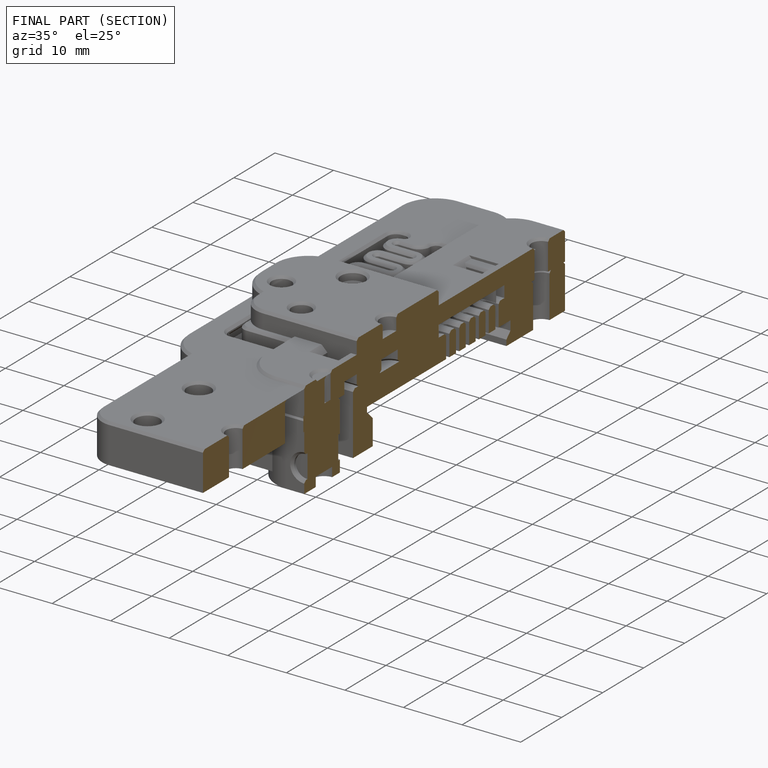
[diagram: finished part — half-section view (interior)]
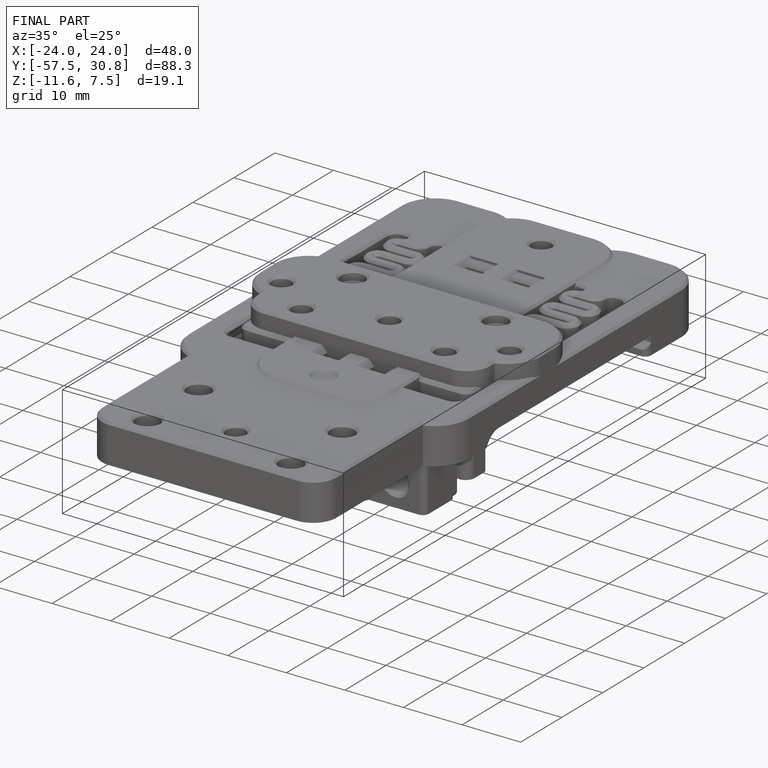
[diagram: finished part — iso view with bounding-box wireframe]
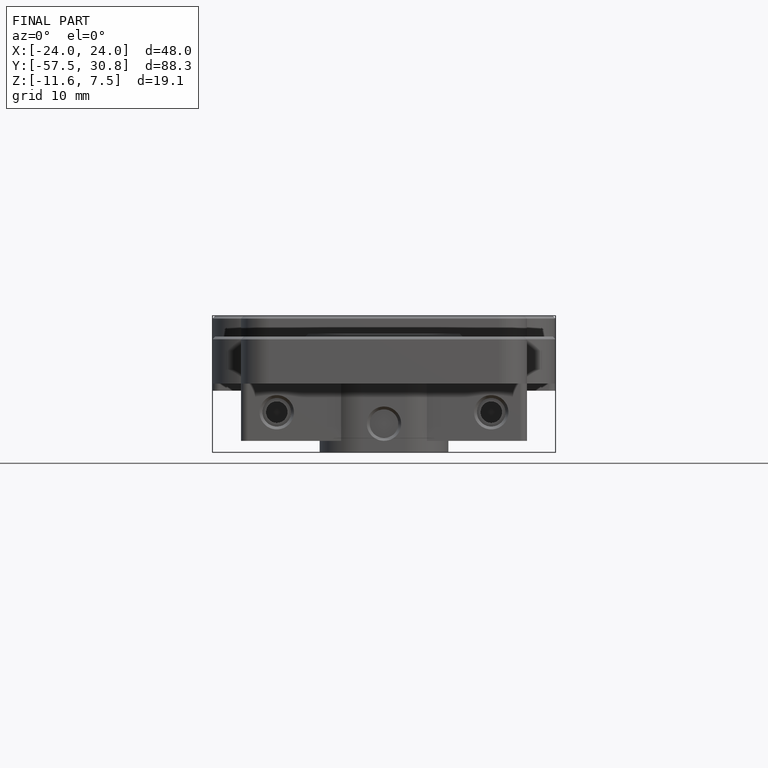
[diagram: finished part — front view with bounding-box wireframe]
